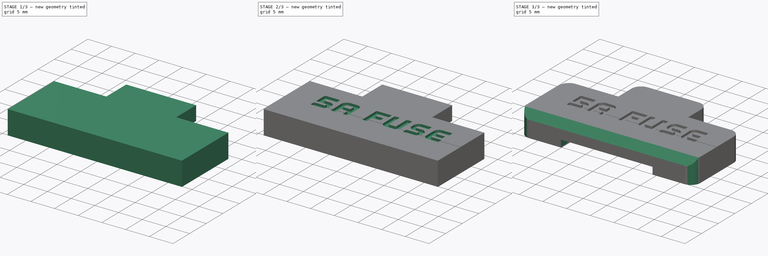
[diagram: build sequence overview — one tinted view per stage of 3, left to right]
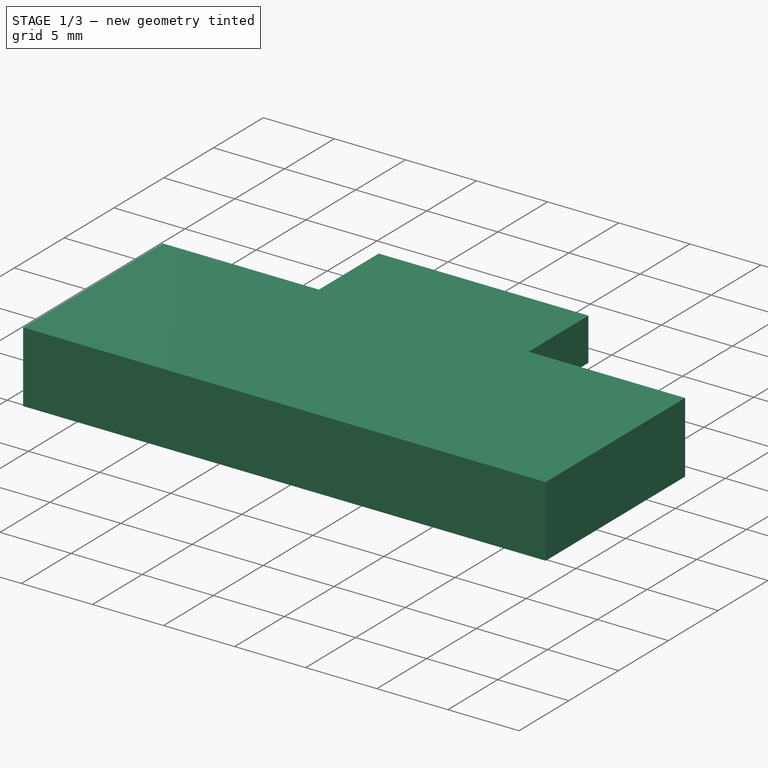
[diagram: stage 1 of 3 — iso view after this stage's code; geometry added in this stage tinted green]
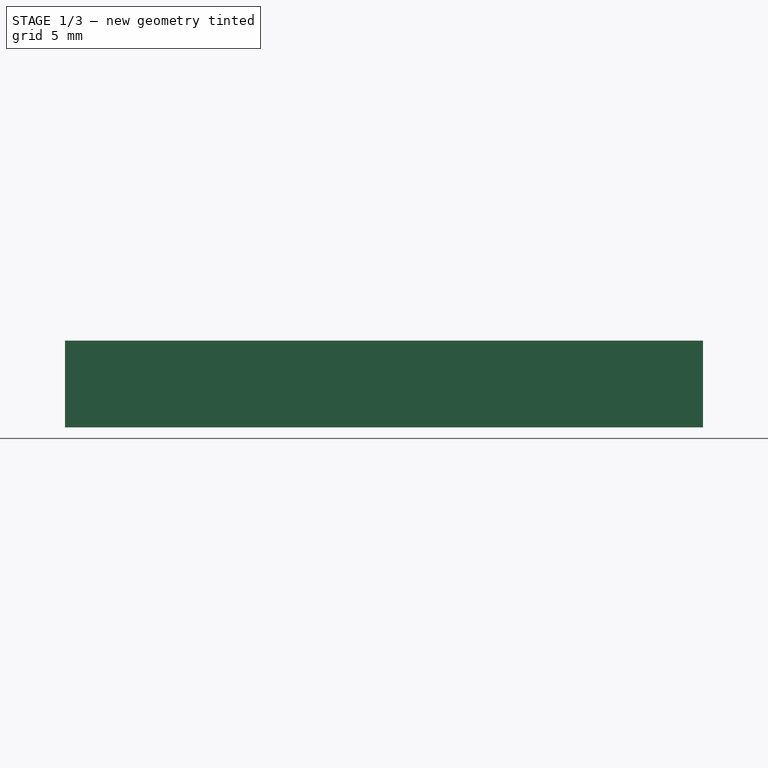
[diagram: stage 1 of 3 — front view after this stage's code; geometry added in this stage tinted green]
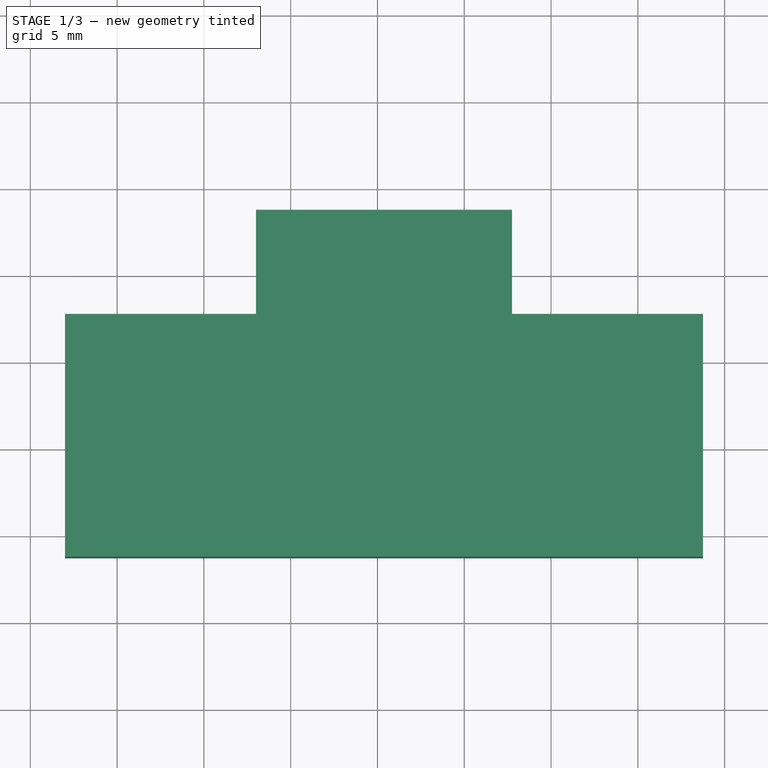
[diagram: stage 1 of 3 — top view after this stage's code; geometry added in this stage tinted green]
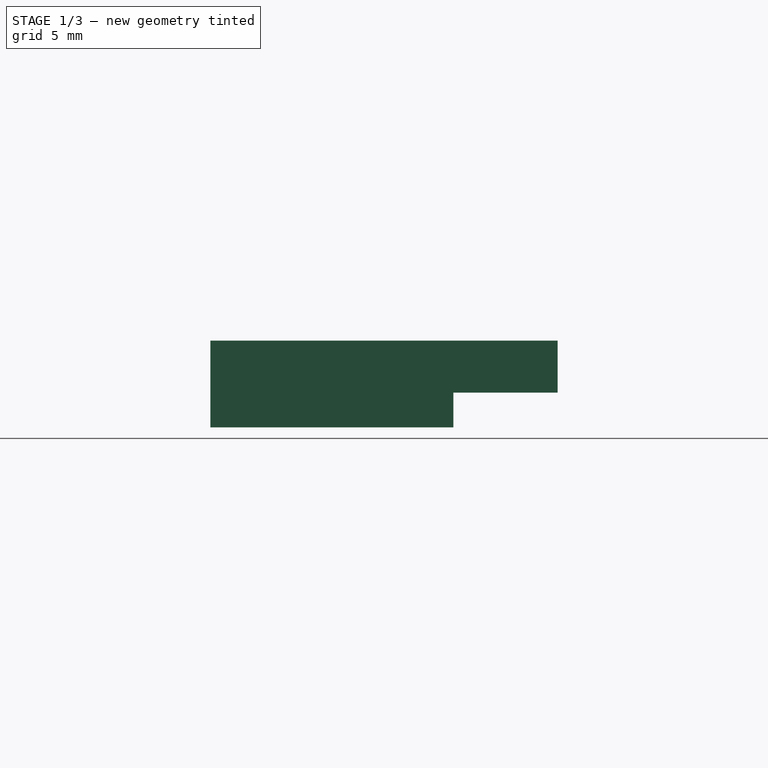
[diagram: stage 1 of 3 — right view after this stage's code; geometry added in this stage tinted green]
FCSTD DOCUMENT  (FreeCAD 0.17R13662 (Git))
Label: fuse_sleeve
License: CreativeCommons Attribution-ShareAlike
LicenseURL: http://creativecommons.org/licenses/by-sa/4.0/
objects: Sketcher::SketchObject×5, PartDesign::Pocket×5, PartDesign::Pad×1, Part::Part2DObjectPython×1, PartDesign::Chamfer×1, PartDesign::Fillet×1, PartDesign::Body×1
note: 21 computed .brp shape members not serialized (recipe doc carries the construction recipe); baked Part::Feature solids carry a one-line shape summary decoded from their .brp

FEATURE [Sketcher::SketchObject] Sketch003
  MapMode = 5
  Support = -> [XY_Plane]
  sketch-geometry (8):
    g0: LineSegment StartX=62 StartY=27.75 StartZ=0 EndX=73 EndY=27.75 EndZ=0
    g1: LineSegment StartX=73 StartY=27.75 StartZ=0 EndX=73 EndY=33.75 EndZ=0
    g2: LineSegment StartX=73 StartY=33.75 StartZ=0 EndX=87.75 EndY=33.75 EndZ=0
    g3: LineSegment StartX=87.75 StartY=33.75 StartZ=0 EndX=87.75 EndY=27.75 EndZ=0
    g4: LineSegment StartX=87.75 StartY=27.75 StartZ=0 EndX=98.75 EndY=27.75 EndZ=0
    g5: LineSegment StartX=98.75 StartY=27.75 StartZ=0 EndX=98.75 EndY=13.75 EndZ=0
    g6: LineSegment StartX=98.75 StartY=13.75 StartZ=0 EndX=62 EndY=13.75 EndZ=0
    g7: LineSegment StartX=62 StartY=13.75 StartZ=0 EndX=62 EndY=27.75 EndZ=0
  constraints (24):
    c: Horizontal(g0)
    c: Coincident(g0,g1)
    c: Vertical(g1)
    c: Coincident(g1,g2)
    c: Horizontal(g2)
    c: Coincident(g2,g3)
    c: Vertical(g3)
    c: Coincident(g3,g4)
    c: Horizontal(g4)
    c: Coincident(g4,g5)
    c: Vertical(g5)
    c: Coincident(g5,g6)
    c: Horizontal(g6)
    c: Coincident(g6,g7)
    c: Coincident(g7,g0)
    c: Vertical(g7)
    c: DistanceX(g6) = 62
    c: DistanceY(g6) = 13.75
    c: DistanceY(g7,g7) = 14
    c: Equal(g5,g7)
    c: Equal(g4,g0)
    c: DistanceX(g6,g6) = 36.75
    c: DistanceX(g0,g0) = 11
    c: DistanceY(g3,g3) = 6
FEATURE [PartDesign::Pad] Pad001
  Length = 5
  Length2 = 100
  Profile = -> Sketch003
  Type = 0
FEATURE [Sketcher::SketchObject] Sketch005
  MapMode = 5
  Placement = pos=(0,0,0) rot=(1,0,0;3.14159rad)
  Support = -> [Pad001]
  sketch-geometry (24):
    g0: LineSegment StartX=70.75 StartY=-18.75 StartZ=0 EndX=74 EndY=-18.75 EndZ=0
    g1: LineSegment StartX=74 StartY=-18.75 StartZ=0 EndX=74 EndY=-25.75 EndZ=0
    g2: LineSegment StartX=74 StartY=-25.75 StartZ=0 EndX=70.75 EndY=-25.75 EndZ=0
    g3: LineSegment StartX=70.75 StartY=-25.75 StartZ=0 EndX=70.75 EndY=-18.75 EndZ=0
    g4: LineSegment StartX=74.75 StartY=-18.75 StartZ=0 EndX=78 EndY=-18.75 EndZ=0
    g5: LineSegment StartX=78 StartY=-18.75 StartZ=0 EndX=78 EndY=-25.75 EndZ=0
    g6: LineSegment StartX=78 StartY=-25.75 StartZ=0 EndX=74.75 EndY=-25.75 EndZ=0
    g7: LineSegment StartX=74.75 StartY=-25.75 StartZ=0 EndX=74.75 EndY=-18.75 EndZ=0
    g8: LineSegment StartX=78.75 StartY=-18.75 StartZ=0 EndX=82 EndY=-18.75 EndZ=0
    g9: LineSegment StartX=82 StartY=-18.75 StartZ=0 EndX=82 EndY=-25.75 EndZ=0
    g10: LineSegment StartX=82 StartY=-25.75 StartZ=0 EndX=78.75 EndY=-25.75 EndZ=0
    g11: LineSegment StartX=78.75 StartY=-25.75 StartZ=0 EndX=78.75 EndY=-18.75 EndZ=0
    g12: LineSegment StartX=82.75 StartY=-18.75 StartZ=0 EndX=86 EndY=-18.75 EndZ=0
    g13: LineSegment StartX=86 StartY=-18.75 StartZ=0 EndX=86 EndY=-25.75 EndZ=0
    g14: LineSegment StartX=86 StartY=-25.75 StartZ=0 EndX=82.75 EndY=-25.75 EndZ=0
    g15: LineSegment StartX=82.75 StartY=-25.75 StartZ=0 EndX=82.75 EndY=-18.75 EndZ=0
    g16: LineSegment StartX=86.75 StartY=-18.75 StartZ=0 EndX=90 EndY=-18.75 EndZ=0
    g17: LineSegment StartX=90 StartY=-18.75 StartZ=0 EndX=90 EndY=-25.75 EndZ=0
    g18: LineSegment StartX=90 StartY=-25.75 StartZ=0 EndX=86.75 EndY=-25.75 EndZ=0
    g19: LineSegment StartX=86.75 StartY=-25.75 StartZ=0 EndX=86.75 EndY=-18.75 EndZ=0
    g20: LineSegment [constr] StartX=70.75 StartY=-18.75 StartZ=0 EndX=90 EndY=-18.75 EndZ=0
    g21: LineSegment [constr] StartX=90 StartY=-18.75 StartZ=0 EndX=90 EndY=-25.75 EndZ=0
    g22: LineSegment [constr] StartX=90 StartY=-25.75 StartZ=0 EndX=70.75 EndY=-25.75 EndZ=0
    g23: LineSegment [constr] StartX=70.75 StartY=-25.75 StartZ=0 EndX=70.75 EndY=-18.75 EndZ=0
  constraints (70):
    c: Coincident(g0,g1)
    c: Coincident(g1,g2)
    c: Coincident(g2,g3)
    c: Coincident(g3,g0)
    c: Horizontal(g0)
    c: Horizontal(g2)
    c: Vertical(g1)
    c: Vertical(g3)
    c: Coincident(g4,g5)
    c: Coincident(g5,g6)
    c: Coincident(g6,g7)
    c: Coincident(g7,g4)
    c: Horizontal(g4)
    c: Horizontal(g6)
    c: Vertical(g5)
    c: Vertical(g7)
    c: Coincident(g8,g9)
    c: Coincident(g9,g10)
    c: Coincident(g10,g11)
    c: Coincident(g11,g8)
    c: Horizontal(g8)
    c: Horizontal(g10)
    c: Vertical(g9)
    c: Vertical(g11)
    c: Coincident(g12,g13)
    c: Coincident(g13,g14)
    c: Coincident(g14,g15)
    c: Coincident(g15,g12)
    c: Horizontal(g12)
    c: Horizontal(g14)
    c: Vertical(g13)
    c: Vertical(g15)
    c: Coincident(g16,g17)
    c: Coincident(g17,g18)
    c: Coincident(g18,g19)
    c: Coincident(g19,g16)
    c: Horizontal(g16)
    c: Horizontal(g18)
    c: Vertical(g17)
    c: Vertical(g19)
    c: Coincident(g20,g21)
    c: Coincident(g21,g22)
    c: Coincident(g22,g23)
    c: Coincident(g23,g20)
    c: Horizontal(g20)
    c: Horizontal(g22)
    c: Vertical(g21)
    c: Vertical(g23)
    c: Coincident(g20,g0)
    c: Coincident(g21,g17)
    c: Coincident(g16,g20)
    c: Coincident(g2,g22)
    c: PointOnObject(g6,g22)
    c: PointOnObject(g4,g20)
    c: PointOnObject(g8,g20)
    c: PointOnObject(g12,g20)
    c: PointOnObject(g14,g22)
    c: PointOnObject(g9,g22)
    c: Equal(g12,g0)
    c: Equal(g0,g4)
    c: Equal(g4,g8)
    c: Equal(g8,g16)
    c: DistanceX(g16,g16) = 3.25
    c: DistanceY(g17,g17) = 7
    c: DistanceX(g0,g4) = 0.75
    c: DistanceX(g12,g16) = 0.75
    c: DistanceX(g8,g12) = 0.75
    c: DistanceX(g4,g8) = 0.75
    c: DistanceX(g16) = 90
    c: DistanceY(g16) = -18.75
FEATURE [Sketcher::SketchObject] Sketch006
  MapMode = 5
  Placement = pos=(0,0,0) rot=(1,0,0;3.14159rad)
  sketch-geometry (4):
    g0: LineSegment StartX=73 StartY=-27.75 StartZ=0 EndX=87.75 EndY=-27.75 EndZ=0
    g1: LineSegment StartX=87.75 StartY=-27.75 StartZ=0 EndX=87.75 EndY=-33.75 EndZ=0
    g2: LineSegment StartX=87.75 StartY=-33.75 StartZ=0 EndX=73 EndY=-33.75 EndZ=0
    g3: LineSegment StartX=73 StartY=-33.75 StartZ=0 EndX=73 EndY=-27.75 EndZ=0
  constraints (12):
    c: Coincident(g0,g1)
    c: Coincident(g1,g2)
    c: Coincident(g2,g3)
    c: Coincident(g3,g0)
    c: Horizontal(g0)
    c: Horizontal(g2)
    c: Vertical(g1)
    c: Vertical(g3)
    c: DistanceX(g0) = 73
    c: DistanceY(g0) = -27.75
    c: DistanceX(g0,g0) = 14.75
    c: DistanceY(g1,g1) = 6
FEATURE [PartDesign::Pocket] Pocket
  BaseFeature = -> Pad001
  Length = 3.5
  Length2 = 100
  Profile = -> Sketch005
  Type = 0
FEATURE [PartDesign::Pocket] Pocket001
  BaseFeature = -> Pocket
  Length = 2
  Length2 = 100
  Profile = -> Sketch006
  Type = 0
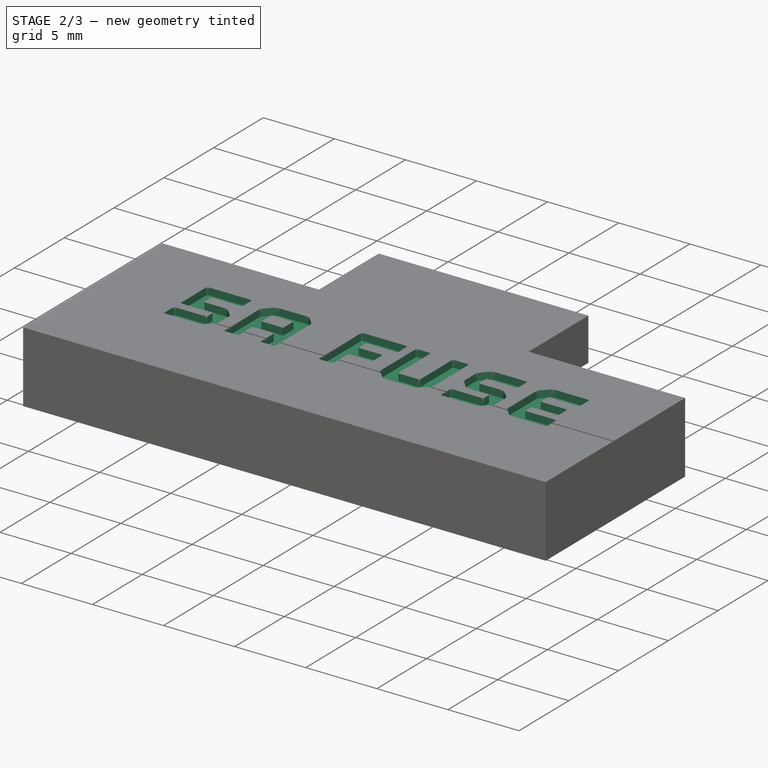
[diagram: stage 2 of 3 — iso view after this stage's code; geometry added in this stage tinted green]
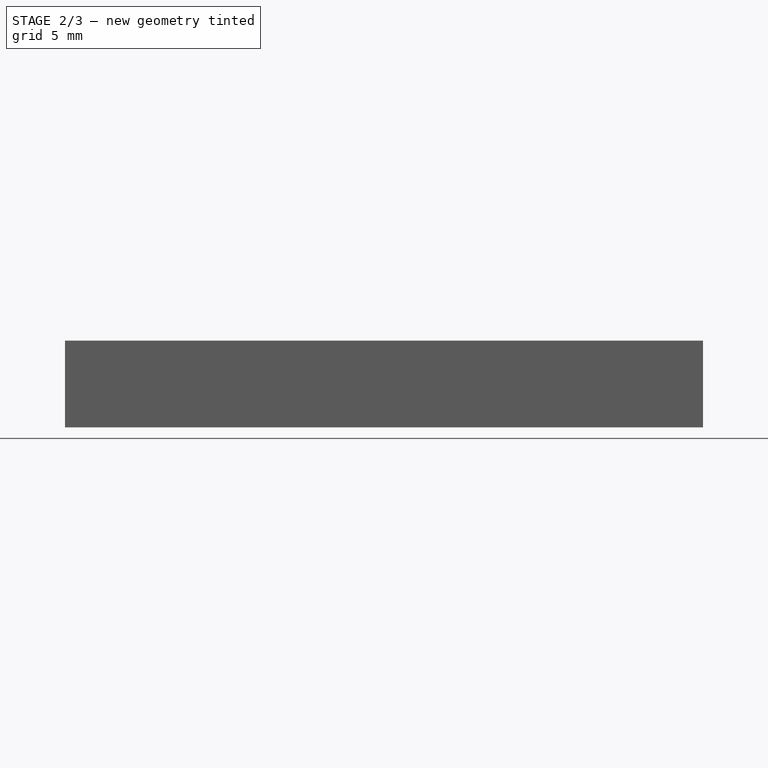
[diagram: stage 2 of 3 — front view after this stage's code; geometry added in this stage tinted green]
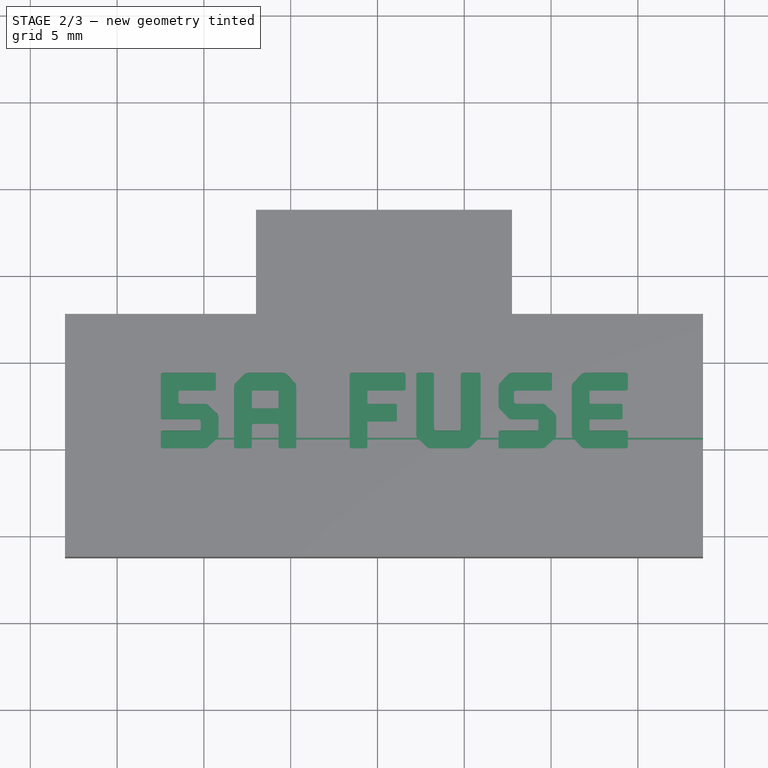
[diagram: stage 2 of 3 — top view after this stage's code; geometry added in this stage tinted green]
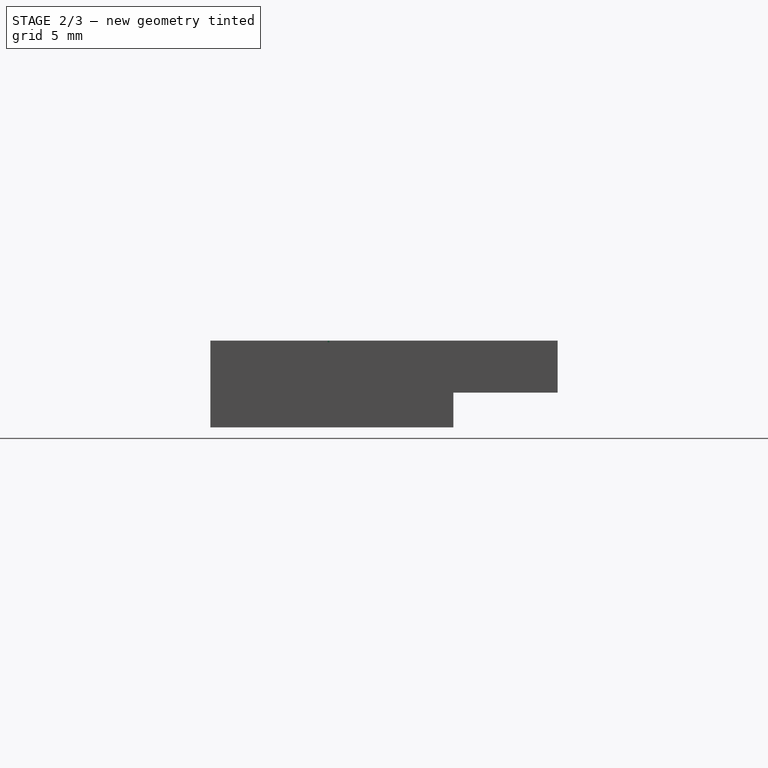
[diagram: stage 2 of 3 — right view after this stage's code; geometry added in this stage tinted green]
FEATURE [Part::Part2DObjectPython] ShapeString  # Draft 2D object (typed FeaturePython)
  AttachmentOffset = pos=(67,20,0) rot=(0,0,1;0rad)
  FontFile = <userpath>/Desktop/Outage Cut.ttf
  MapMode = 5
  Placement = pos=(67,20,5) rot=(0,0,1;0rad)
  Size = 2
  String = 5A FUSE
  Tracking = 0
FEATURE [Sketcher::SketchObject] Sketch
  MapMode = 5
  Placement = pos=(0,0,5) rot=(0,0,1;0rad)
  sketch-geometry (4):
    g0: LineSegment StartX=67.75 StartY=20.6 StartZ=0 EndX=98.75 EndY=20.6 EndZ=0
    g1: LineSegment StartX=98.75 StartY=20.6 StartZ=0 EndX=98.75 EndY=20.5 EndZ=0
    g2: LineSegment StartX=98.75 StartY=20.5 StartZ=0 EndX=67.75 EndY=20.5 EndZ=0
    g3: LineSegment StartX=67.75 StartY=20.5 StartZ=0 EndX=67.75 EndY=20.6 EndZ=0
  constraints (12):
    c: Coincident(g0,g1)
    c: Coincident(g1,g2)
    c: Coincident(g2,g3)
    c: Coincident(g3,g0)
    c: Horizontal(g0)
    c: Horizontal(g2)
    c: Vertical(g1)
    c: Vertical(g3)
    c: DistanceX(g1) = 98.75
    c: DistanceY(g1) = 20.5
    c: DistanceY(g1,g1) = 0.1
    c: DistanceX(g0,g0) = 31
FEATURE [PartDesign::Pocket] Pocket002
  BaseFeature = -> Pocket001
  Length = 0.5
  Length2 = 100
  Profile = -> ShapeString
  Type = 0
FEATURE [PartDesign::Pocket] Pocket003
  BaseFeature = -> Pocket002
  Length = 0.1
  Length2 = 100
  Profile = -> Sketch
  Type = 0
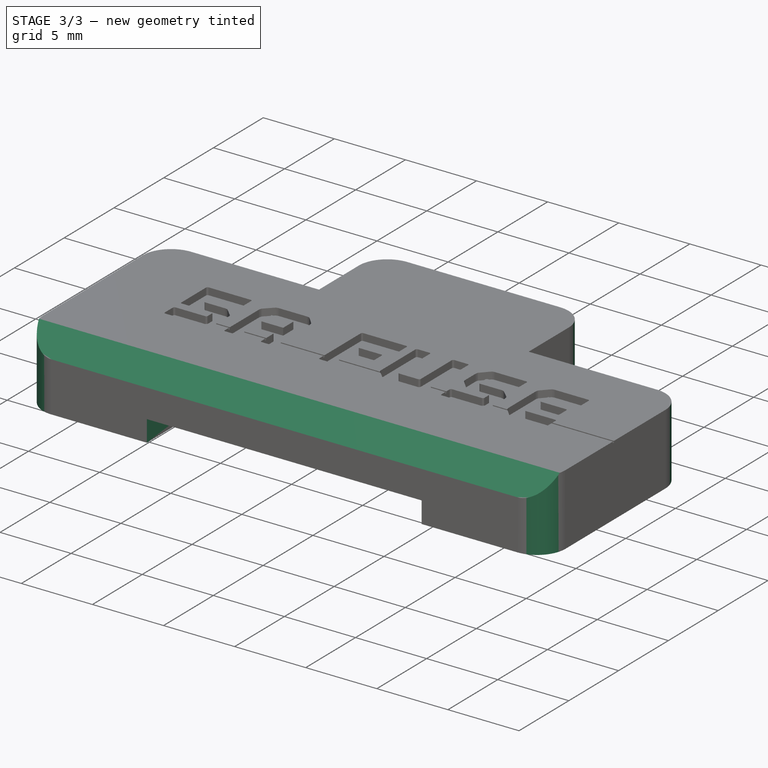
[diagram: stage 3 of 3 — iso view after this stage's code; geometry added in this stage tinted green]
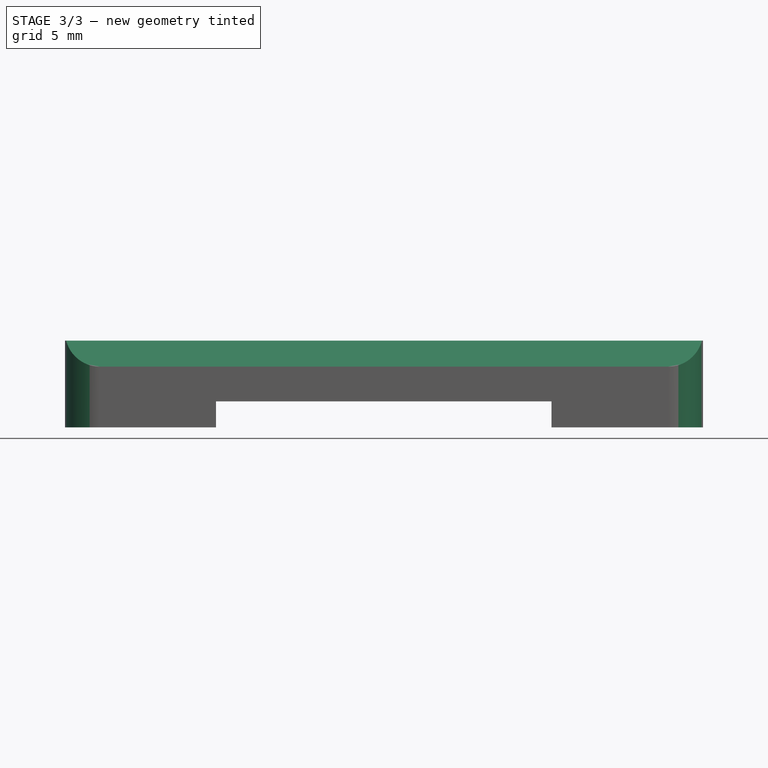
[diagram: stage 3 of 3 — front view after this stage's code; geometry added in this stage tinted green]
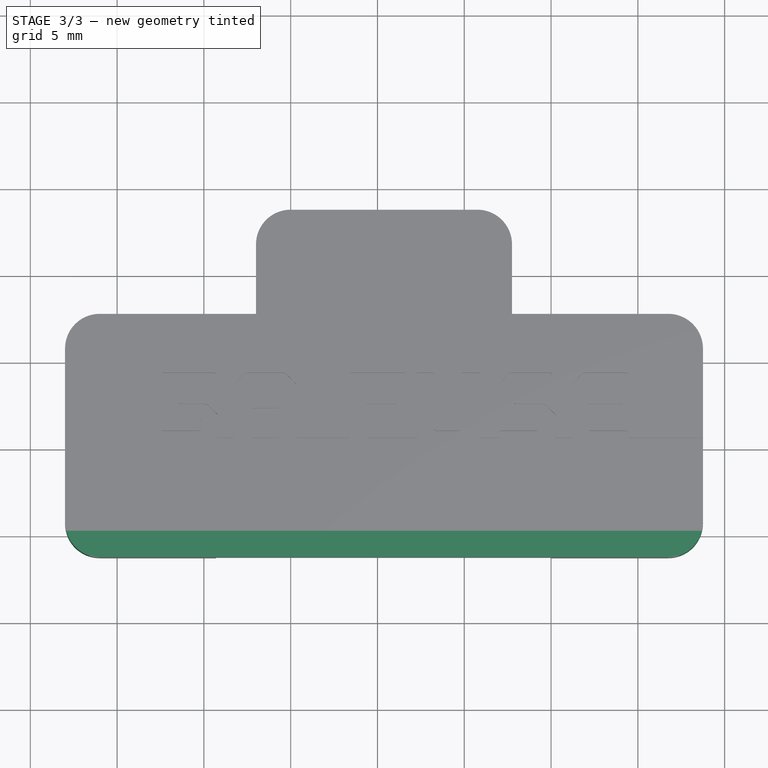
[diagram: stage 3 of 3 — top view after this stage's code; geometry added in this stage tinted green]
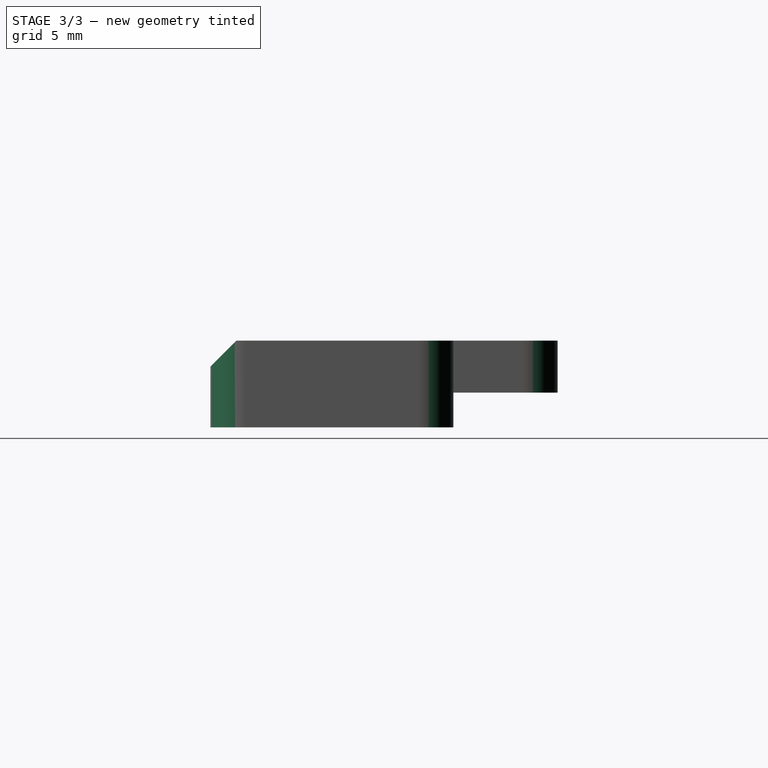
[diagram: stage 3 of 3 — right view after this stage's code; geometry added in this stage tinted green]
FEATURE [Sketcher::SketchObject] Sketch007
  ExternalGeometry = -> [Pocket003]
  MapMode = 5
  Placement = pos=(0,0,0) rot=(1,0,0;3.14159rad)
  Support = -> [Pocket003]
  sketch-geometry (4):
    g0: LineSegment StartX=70.7 StartY=-12.75 StartZ=0 EndX=90.025 EndY=-12.75 EndZ=0
    g1: LineSegment StartX=90.025 StartY=-12.75 StartZ=0 EndX=90.025 EndY=-30.75 EndZ=0
    g2: LineSegment StartX=90.025 StartY=-30.75 StartZ=0 EndX=70.7 EndY=-30.75 EndZ=0
    g3: LineSegment StartX=70.7 StartY=-30.75 StartZ=0 EndX=70.7 EndY=-12.75 EndZ=0
  constraints (12):
    c: Coincident(g0,g1)
    c: Coincident(g1,g2)
    c: Coincident(g2,g3)
    c: Coincident(g3,g0)
    c: Horizontal(g0)
    c: Horizontal(g2)
    c: Vertical(g1)
    c: Vertical(g3)
    c: DistanceY(g1,g1) = 18
    c: DistanceX(g0,g0) = 19.325
    c: DistanceX(g2) = 70.7
    c: DistanceY(g-3,g0) = 6
FEATURE [PartDesign::Pocket] Pocket004
  BaseFeature = -> Pocket003
  Length = 1.5
  Length2 = 100
  Profile = -> Sketch007
  Type = 0
FEATURE [PartDesign::Chamfer] Chamfer
  Base = -> Pocket004 [Edge43]
  BaseFeature = -> Pocket004
  Size = 1.5
FEATURE [PartDesign::Fillet] Fillet
  Base = -> Chamfer [Edge296,Edge311,Edge315,Edge306,Edge293,Edge304]
  BaseFeature = -> Chamfer
  Radius = 2
FEATURE [PartDesign::Body] Body
  Group = -> [Sketch003,Pad001,Sketch005,Sketch006,Pocket,Pocket001,Sketch,ShapeString,Pocket002,Pocket003,Sketch007,Pocket004,Chamfer,Fillet]
  Origin = -> Origin
  Tip = -> Fillet
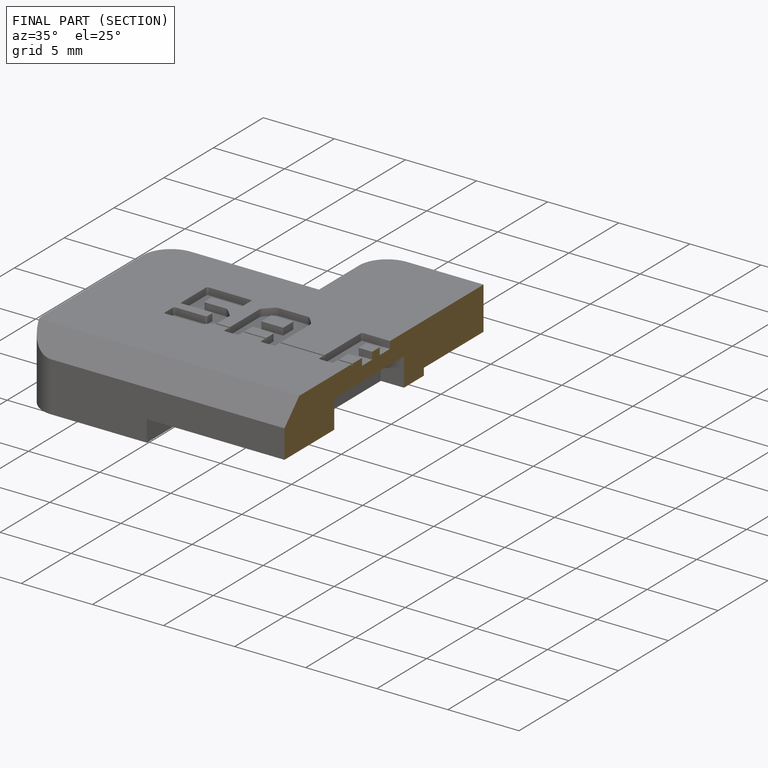
[diagram: finished part — half-section view (interior)]
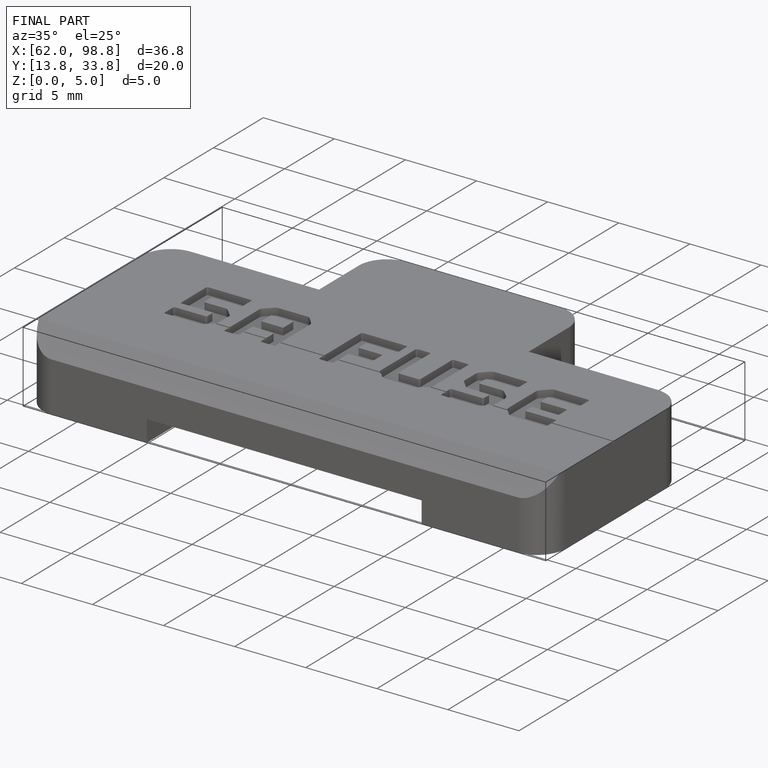
[diagram: finished part — iso view with bounding-box wireframe]
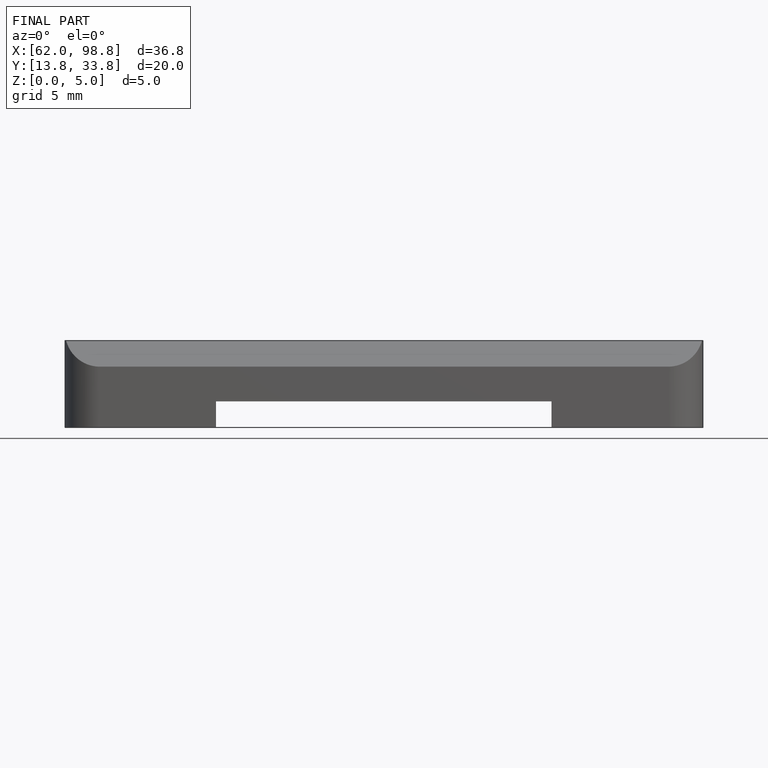
[diagram: finished part — front view with bounding-box wireframe]
